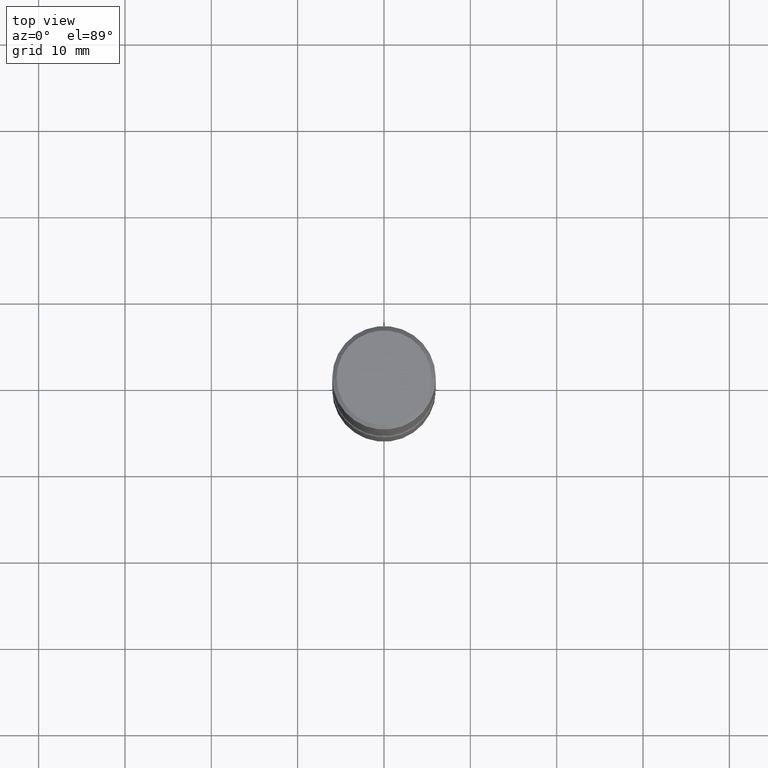
[diagram: clean part render]
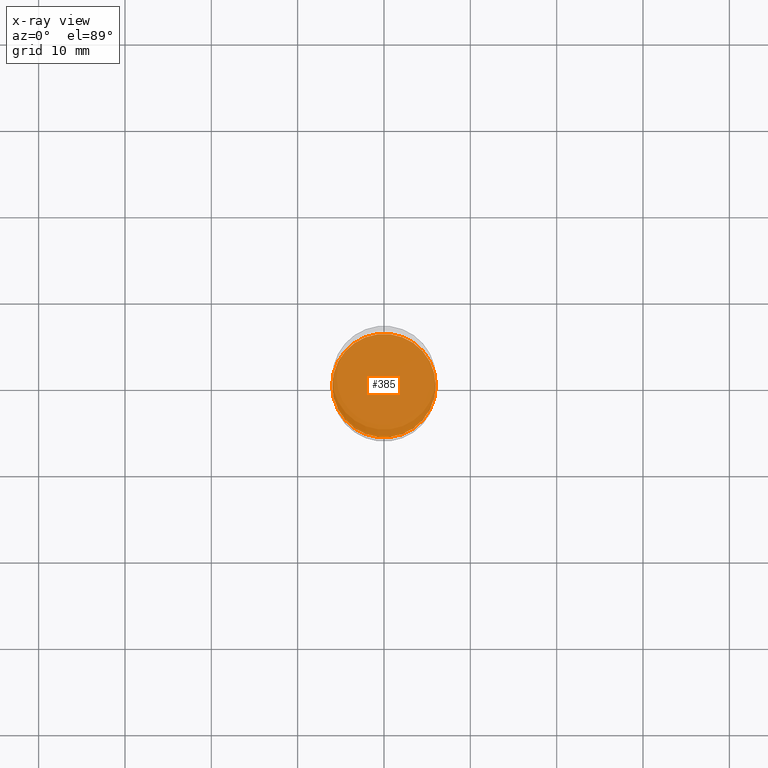
[diagram: x-ray — body ghosted, one internal face saturated and labeled with its STEP entity id]
A machine part, top view, then the same camera in x-ray: the body is ghosted and one INTERNAL B-rep face — a face not visible from any outside direction — is saturated and labeled: STEP entity #385.
In plain terms, the highlighted planar face has unit normal (0, -0, -1).
Its self-contained STEP definition (entity closure, byte-faithful):
#10 = CIRCLE ( 'NONE', #184, 0.2362000000000002153 ) ;
#80 = DIRECTION ( 'NONE',  ( 1.000000000000000000, -6.982962677686266711E-15, 0.000000000000000000 ) ) ;
#89 = AXIS2_PLACEMENT_3D ( 'NONE', #485, #467, #80 ) ;
#133 = DIRECTION ( 'NONE',  ( -1.000000000000000000, 6.982962677686265922E-15, -4.876176775795935793E-29 ) ) ;
#177 = CARTESIAN_POINT ( 'NONE',  ( 5.102715210985905155E-29, -7.285324961630105839E-15, -2.086599999999999344 ) ) ;
#184 = AXIS2_PLACEMENT_3D ( 'NONE', #339, #254, #472 ) ;
#192 = AXIS2_PLACEMENT_3D ( 'NONE', #177, #471, #133 ) ;
#208 = EDGE_LOOP ( 'NONE', ( #347, #523 ) ) ;
#254 = DIRECTION ( 'NONE',  ( -2.445468806185136597E-29, 3.491481338843145583E-15, 1.000000000000000000 ) ) ;
#255 = CIRCLE ( 'NONE', #89, 0.2362000000000002153 ) ;
#271 = FACE_OUTER_BOUND ( 'NONE', #208, .T. ) ;
#315 = EDGE_CURVE ( 'NONE', #433, #322, #255, .T. ) ;
#322 = VERTEX_POINT ( 'NONE', #496 ) ;
#339 = CARTESIAN_POINT ( 'NONE',  ( 5.102715210985905155E-29, -7.285324961630105839E-15, -2.086599999999999344 ) ) ;
#347 = ORIENTED_EDGE ( 'NONE', *, *, #315, .T. ) ;
#358 = CARTESIAN_POINT ( 'NONE',  ( 0.2362000000000002153, -8.934700746099602364E-15, -2.086599999999999344 ) ) ;
#385 = ADVANCED_FACE ( 'NONE', ( #271 ), #481, .F. ) ;
#387 = EDGE_CURVE ( 'NONE', #322, #433, #10, .T. ) ;
#433 = VERTEX_POINT ( 'NONE', #358 ) ;
#467 = DIRECTION ( 'NONE',  ( -2.445468806185136597E-29, 3.491481338843145583E-15, 1.000000000000000000 ) ) ;
#471 = DIRECTION ( 'NONE',  ( 2.438088387897960049E-29, -3.491481338843145188E-15, -1.000000000000000000 ) ) ;
#472 = DIRECTION ( 'NONE',  ( 1.000000000000000000, -6.982962677686266711E-15, 0.000000000000000000 ) ) ;
#481 = PLANE ( 'NONE',  #192 ) ;
#485 = CARTESIAN_POINT ( 'NONE',  ( 5.102715210985905155E-29, -7.285324961630105839E-15, -2.086599999999999344 ) ) ;
#496 = CARTESIAN_POINT ( 'NONE',  ( -0.2362000000000002153, -7.531527533735089132E-15, -2.086599999999999344 ) ) ;
#523 = ORIENTED_EDGE ( 'NONE', *, *, #387, .T. ) ;